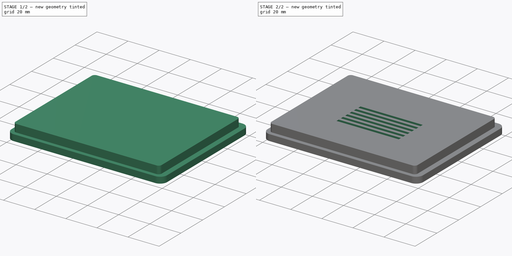
[diagram: build sequence overview — one tinted view per stage of 2, left to right]
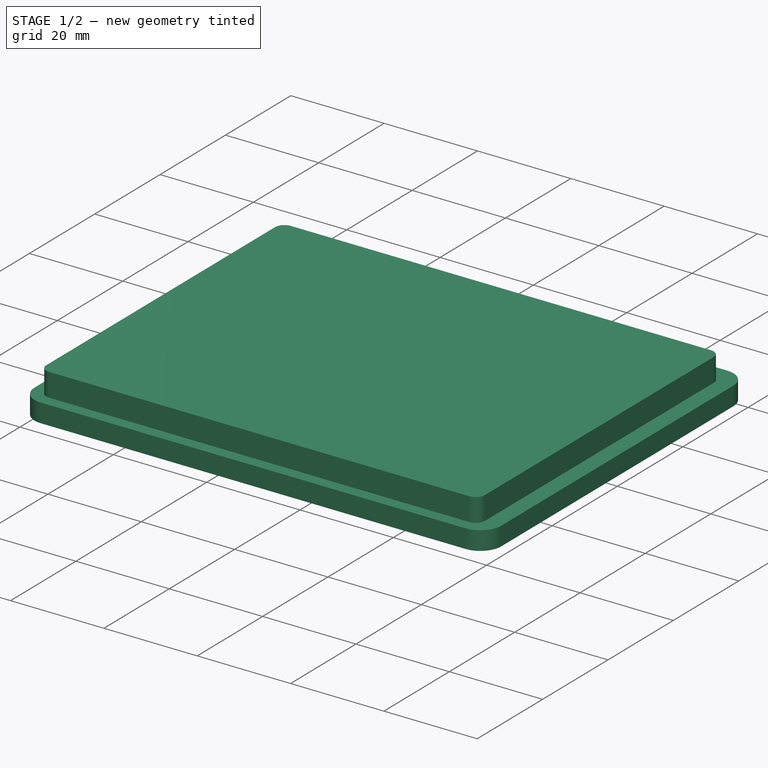
[diagram: stage 1 of 2 — iso view after this stage's code; geometry added in this stage tinted green]
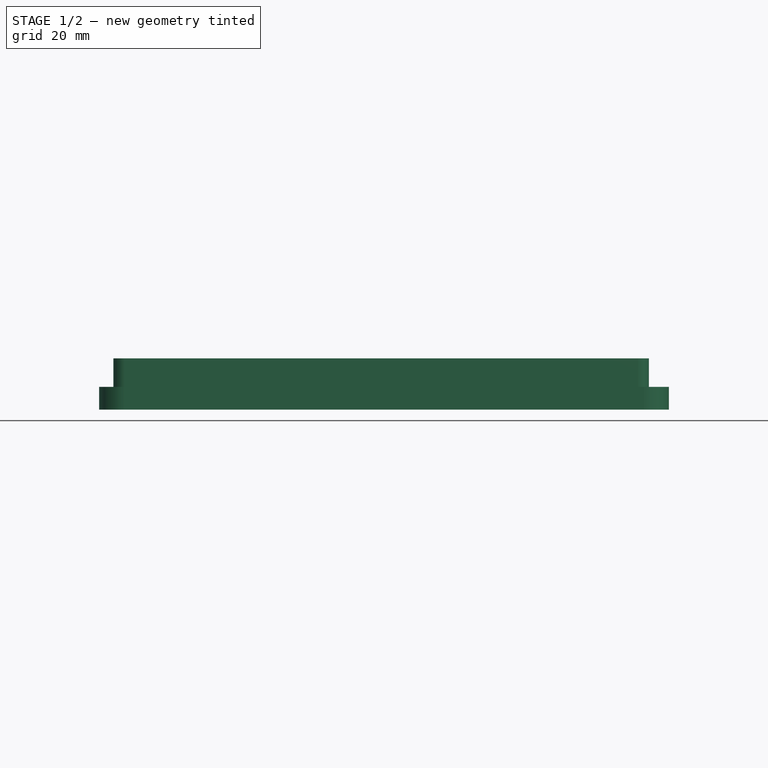
[diagram: stage 1 of 2 — front view after this stage's code; geometry added in this stage tinted green]
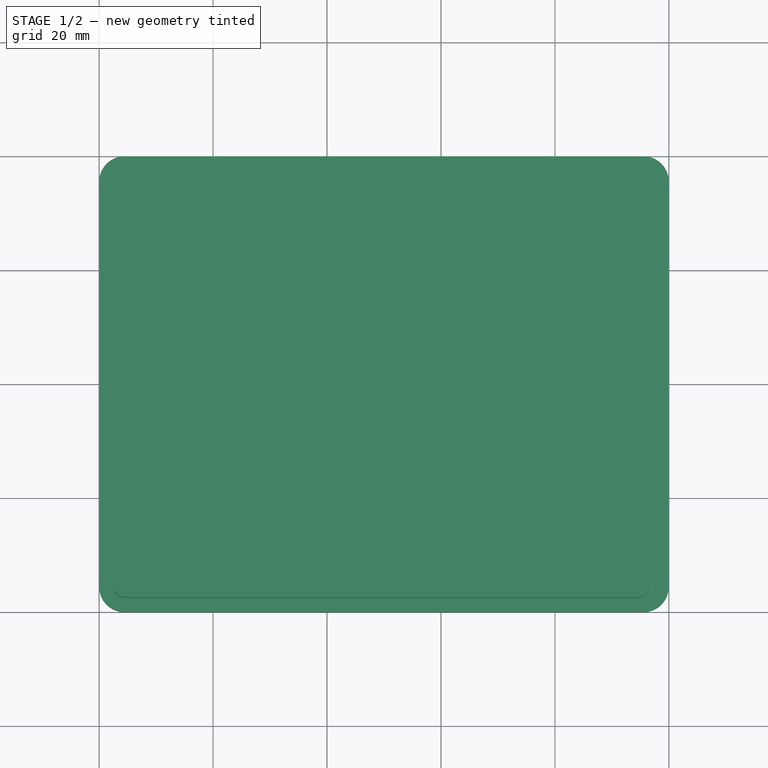
[diagram: stage 1 of 2 — top view after this stage's code; geometry added in this stage tinted green]
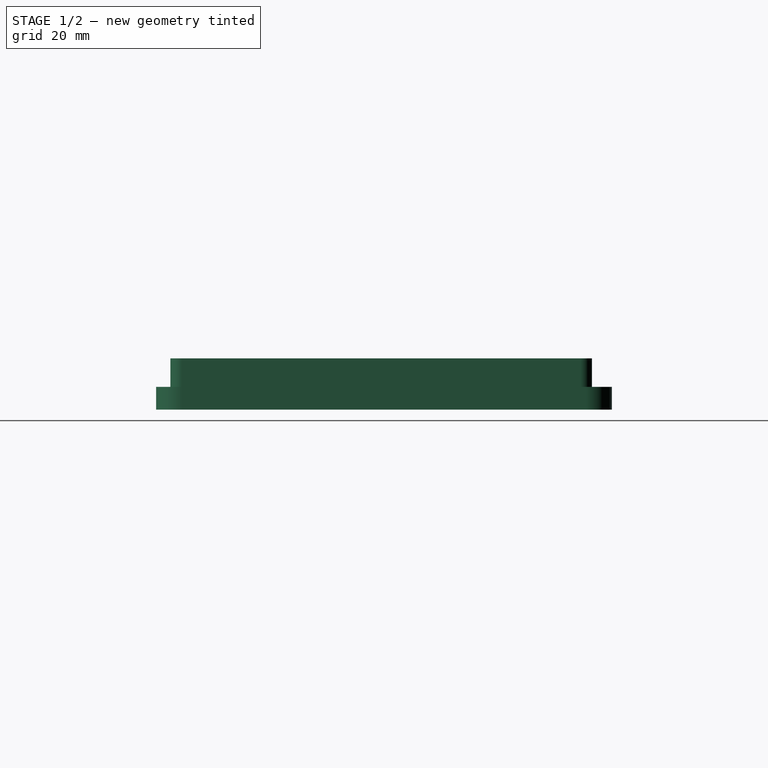
[diagram: stage 1 of 2 — right view after this stage's code; geometry added in this stage tinted green]
FCSTD DOCUMENT  (FreeCAD 1.0R39109 (Git))
Label: boxx
License: All rights reserved
LicenseURL: http://en.wikipedia.org/wiki/All_rights_reserved
objects: Sketcher::SketchObject×3, PartDesign::Pad×2, PartDesign::Pocket×1, PartDesign::Body×1
note: 16 computed .brp shape members not serialized (recipe doc carries the construction recipe); baked Part::Feature solids carry a one-line shape summary decoded from their .brp

FEATURE [Sketcher::SketchObject] Sketch
  ArcFitTolerance = 1e-06
  AttachmentSupport = -> [XY_Plane]
  FullyConstrained = true
  MakeInternals = false
  MapMode = 5
  sketch-geometry (12):
    g0: LineSegment StartX=4.5 StartY=0 StartZ=0 EndX=95.5 EndY=0 EndZ=0
    g1: LineSegment StartX=100 StartY=4.5 StartZ=0 EndX=100 EndY=75.5 EndZ=0
    g2: LineSegment StartX=95.5 StartY=80 StartZ=0 EndX=4.5 EndY=80 EndZ=0
    g3: LineSegment StartX=0 StartY=75.5 StartZ=0 EndX=0 EndY=4.5 EndZ=0
    g4: ArcOfCircle CenterX=4.5 CenterY=75.5 CenterZ=0 NormalX=0 NormalY=0 NormalZ=1 AngleXU=0 Radius=4.5 StartAngle=1.5708 EndAngle=3.14159
    g5: GeomPoint [constr] X=0 Y=80 Z=0
    g6: ArcOfCircle CenterX=95.5 CenterY=75.5 CenterZ=0 NormalX=0 NormalY=0 NormalZ=1 AngleXU=0 Radius=4.5 StartAngle=1.1e-15 EndAngle=1.5708
    g7: GeomPoint [constr] X=100 Y=80 Z=0
    g8: ArcOfCircle CenterX=95.5 CenterY=4.5 CenterZ=0 NormalX=0 NormalY=0 NormalZ=1 AngleXU=0 Radius=4.5 StartAngle=4.71239 EndAngle=6.28319
    g9: GeomPoint [constr] X=100 Y=0 Z=0
    g10: ArcOfCircle CenterX=4.5 CenterY=4.5 CenterZ=0 NormalX=0 NormalY=0 NormalZ=1 AngleXU=0 Radius=4.5 StartAngle=3.14159 EndAngle=4.71239
    g11: GeomPoint [constr] X=0 Y=0 Z=0
  constraints (27):
    c: Horizontal(g0)
    c: Horizontal(g2)
    c: Vertical(g1)
    c: Vertical(g3)
    c: Distance(g9,g11) = 100
    c: Distance(g11,g5) = 80
    c: Coincident(g11,g-1)
    c: PointOnObject(g5,g2)
    c: PointOnObject(g5,g3)
    c: Tangent(g2,g4) = -1.5708
    c: Tangent(g3,g4) = -1.5708
    c: PointOnObject(g7,g2)
    c: PointOnObject(g7,g1)
    c: Tangent(g2,g6) = -1.5708
    c: Tangent(g1,g6) = -1.5708
    c: PointOnObject(g9,g1)
    c: PointOnObject(g9,g0)
    c: Tangent(g1,g8) = -1.5708
    c: Tangent(g0,g8) = -1.5708
    c: PointOnObject(g11,g0)
    c: PointOnObject(g11,g3)
    c: Tangent(g0,g10) = -1.5708
    c: Tangent(g3,g10) = -1.5708
    c: DistanceX(g6,g7) = 4.5
    c: DistanceX(g8,g9) = 4.5
    c: DistanceX(g11,g10) = 4.5
    c: DistanceX(g5,g4) = 4.5
FEATURE [PartDesign::Pad] Pad
  Direction = (0,0,1)
  Length = 4
  Length2 = 10
  Profile = -> Sketch
  ReferenceAxis = -> Sketch [N_Axis]
  Suppressed = false
  Type = 0
FEATURE [Sketcher::SketchObject] Sketch001
  ArcFitTolerance = 1e-06
  AttachmentSupport = -> [Pad]
  FullyConstrained = true
  MakeInternals = false
  MapMode = 5
  Placement = pos=(0,0,4) rot=(0,0,1;0rad)
  sketch-geometry (12):
    g0: LineSegment StartX=2.5 StartY=74.5 StartZ=0 EndX=2.5 EndY=4.5 EndZ=0
    g1: LineSegment StartX=4.5 StartY=2.5 StartZ=0 EndX=94.5 EndY=2.5 EndZ=0
    g2: LineSegment StartX=96.5 StartY=4.5 StartZ=0 EndX=96.5 EndY=74.5 EndZ=0
    g3: LineSegment StartX=94.5 StartY=76.5 StartZ=0 EndX=4.5 EndY=76.5 EndZ=0
    g4: ArcOfCircle CenterX=4.5 CenterY=74.5 CenterZ=0 NormalX=0 NormalY=0 NormalZ=1 AngleXU=0 Radius=2 StartAngle=1.5708 EndAngle=3.14159
    g5: GeomPoint [constr] X=2.5 Y=76.5 Z=0
    g6: ArcOfCircle CenterX=94.5 CenterY=74.5 CenterZ=0 NormalX=0 NormalY=0 NormalZ=1 AngleXU=0 Radius=2 StartAngle=2.3e-15 EndAngle=1.5708
    g7: GeomPoint [constr] X=96.5 Y=76.5 Z=0
    g8: ArcOfCircle CenterX=94.5 CenterY=4.5 CenterZ=0 NormalX=0 NormalY=0 NormalZ=1 AngleXU=0 Radius=2 StartAngle=4.71239 EndAngle=6.28319
    g9: GeomPoint [constr] X=96.5 Y=2.5 Z=0
    g10: ArcOfCircle CenterX=4.5 CenterY=4.5 CenterZ=0 NormalX=0 NormalY=0 NormalZ=1 AngleXU=0 Radius=2 StartAngle=3.14159 EndAngle=4.71239
    g11: GeomPoint [constr] X=2.5 Y=2.5 Z=0
  constraints (28):
    c: Vertical(g0)
    c: Vertical(g2)
    c: Horizontal(g1)
    c: Horizontal(g3)
    c: Distance(g5,g7) = 94
    c: Distance(g11,g5) = 74
    c: DistanceX(g-1,g11) = 2.5
    c: DistanceY(g-1,g11) = 2.5
    c: PointOnObject(g5,g0)
    c: PointOnObject(g5,g3)
    c: Tangent(g0,g4) = -1.5708
    c: Tangent(g3,g4) = -1.5708
    c: PointOnObject(g7,g3)
    c: PointOnObject(g7,g2)
    c: Tangent(g3,g6) = -1.5708
    c: Tangent(g2,g6) = -1.5708
    c: PointOnObject(g9,g1)
    c: PointOnObject(g9,g2)
    c: Tangent(g1,g8) = -1.5708
    c: Tangent(g2,g8) = -1.5708
    c: PointOnObject(g11,g0)
    c: PointOnObject(g11,g1)
    c: Tangent(g0,g10) = -1.5708
    c: Tangent(g1,g10) = -1.5708
    c: DistanceX(g5,g4) = 2
    c: DistanceX(g6,g7) = 2
    c: DistanceX(g8,g9) = 2
    c: DistanceX(g11,g10) = 2
FEATURE [PartDesign::Pad] Pad001
  BaseFeature = -> Pad
  Direction = (0,0,1)
  Length = 5
  Length2 = 10
  Profile = -> Sketch001
  ReferenceAxis = -> Sketch001 [N_Axis]
  Suppressed = false
  Type = 0
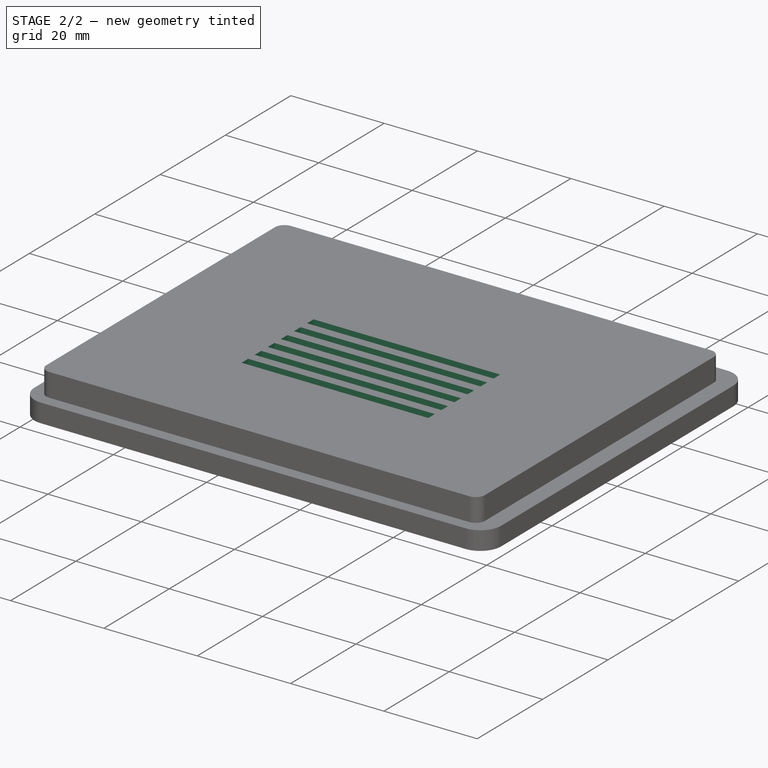
[diagram: stage 2 of 2 — iso view after this stage's code; geometry added in this stage tinted green]
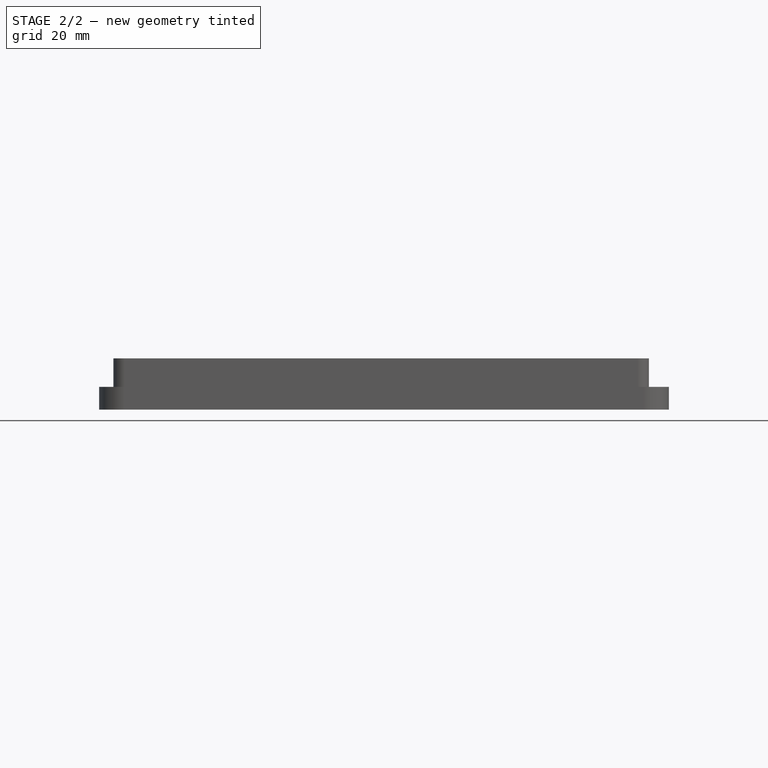
[diagram: stage 2 of 2 — front view after this stage's code; geometry added in this stage tinted green]
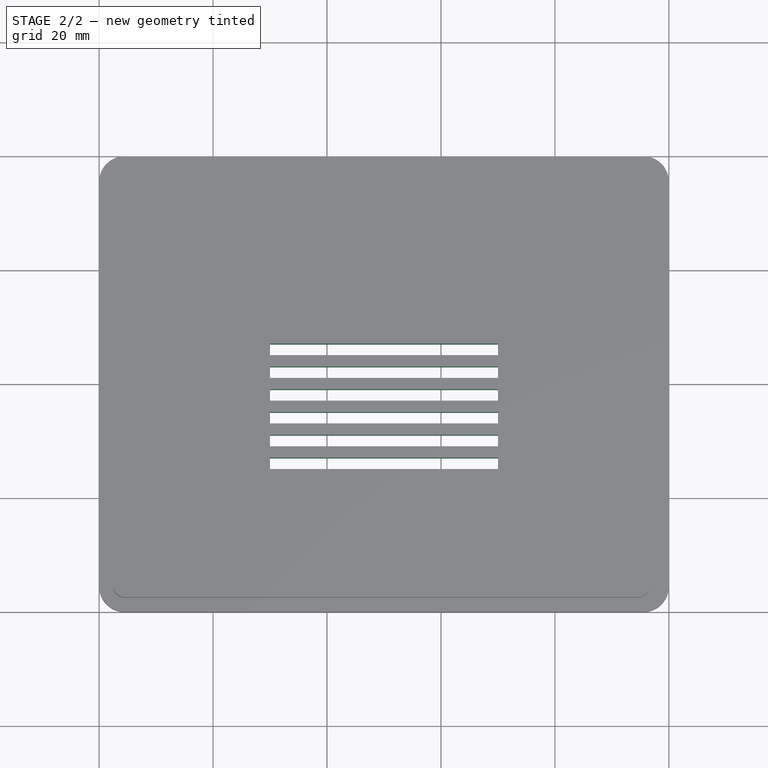
[diagram: stage 2 of 2 — top view after this stage's code; geometry added in this stage tinted green]
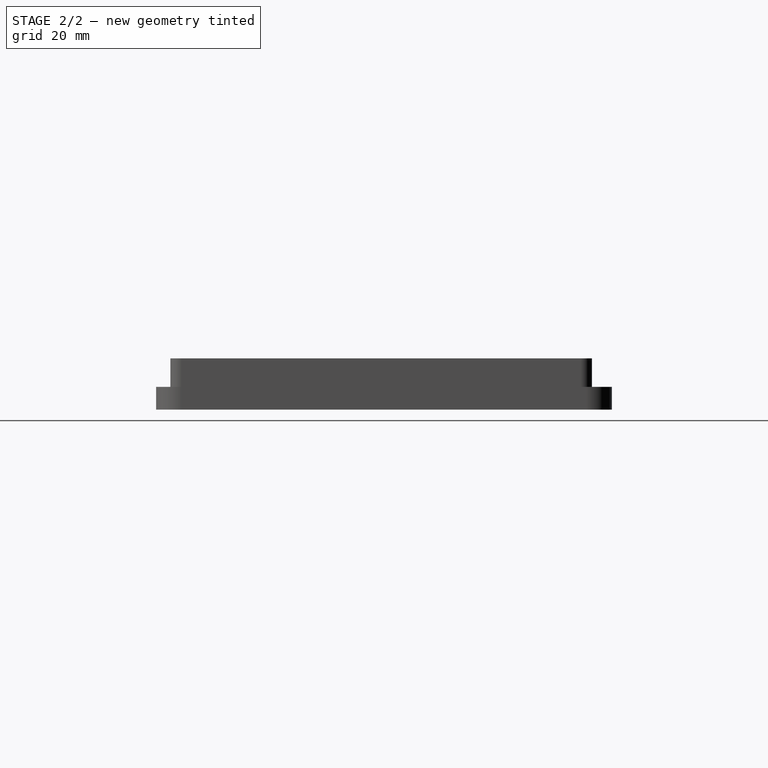
[diagram: stage 2 of 2 — right view after this stage's code; geometry added in this stage tinted green]
FEATURE [Sketcher::SketchObject] Sketch002
  ArcFitTolerance = 1e-06
  AttachmentSupport = -> [Pad001]
  FullyConstrained = true
  MakeInternals = false
  MapMode = 5
  Placement = pos=(0,0,0) rot=(1,0,0;3.14159rad)
  sketch-geometry (24):
    g0: LineSegment StartX=30 StartY=-45 StartZ=0 EndX=30 EndY=-47 EndZ=0
    g1: LineSegment StartX=30 StartY=-47 StartZ=0 EndX=70 EndY=-47 EndZ=0
    g2: LineSegment StartX=70 StartY=-47 StartZ=0 EndX=70 EndY=-45 EndZ=0
    g3: LineSegment StartX=70 StartY=-45 StartZ=0 EndX=30 EndY=-45 EndZ=0
    g4: LineSegment StartX=30 StartY=-41 StartZ=0 EndX=30 EndY=-43 EndZ=0
    g5: LineSegment StartX=30 StartY=-43 StartZ=0 EndX=70 EndY=-43 EndZ=0
    g6: LineSegment StartX=70 StartY=-43 StartZ=0 EndX=70 EndY=-41 EndZ=0
    g7: LineSegment StartX=70 StartY=-41 StartZ=0 EndX=30 EndY=-41 EndZ=0
    g8: LineSegment StartX=30 StartY=-37 StartZ=0 EndX=30 EndY=-39 EndZ=0
    g9: LineSegment StartX=30 StartY=-39 StartZ=0 EndX=70 EndY=-39 EndZ=0
    g10: LineSegment StartX=70 StartY=-39 StartZ=0 EndX=70 EndY=-37 EndZ=0
    g11: LineSegment StartX=70 StartY=-37 StartZ=0 EndX=30 EndY=-37 EndZ=0
    g12: LineSegment StartX=30 StartY=-33 StartZ=0 EndX=30 EndY=-35 EndZ=0
    g13: LineSegment StartX=30 StartY=-35 StartZ=0 EndX=70 EndY=-35 EndZ=0
    g14: LineSegment StartX=70 StartY=-35 StartZ=0 EndX=70 EndY=-33 EndZ=0
    g15: LineSegment StartX=70 StartY=-33 StartZ=0 EndX=30 EndY=-33 EndZ=0
    g16: LineSegment StartX=30 StartY=-29 StartZ=0 EndX=30 EndY=-31 EndZ=0
    g17: LineSegment StartX=30 StartY=-31 StartZ=0 EndX=70 EndY=-31 EndZ=0
    g18: LineSegment StartX=70 StartY=-31 StartZ=0 EndX=70 EndY=-29 EndZ=0
    g19: LineSegment StartX=70 StartY=-29 StartZ=0 EndX=30 EndY=-29 EndZ=0
    g20: LineSegment StartX=30 StartY=-25 StartZ=0 EndX=30 EndY=-27 EndZ=0
    g21: LineSegment StartX=30 StartY=-27 StartZ=0 EndX=70 EndY=-27 EndZ=0
    g22: LineSegment StartX=70 StartY=-27 StartZ=0 EndX=70 EndY=-25 EndZ=0
    g23: LineSegment StartX=70 StartY=-25 StartZ=0 EndX=30 EndY=-25 EndZ=0
  constraints (72):
    c: Coincident(g0,g1)
    c: Coincident(g1,g2)
    c: Coincident(g2,g3)
    c: Coincident(g3,g0)
    c: Vertical(g0)
    c: Vertical(g2)
    c: Horizontal(g1)
    c: Horizontal(g3)
    c: Distance(g0,g2) = 40
    c: Distance(g1,g3) = 2
    c: Coincident(g4,g5)
    c: Coincident(g5,g6)
    c: Coincident(g6,g7)
    c: Coincident(g7,g4)
    c: Vertical(g4)
    c: Vertical(g6)
    c: Horizontal(g5)
    c: Horizontal(g7)
    c: Distance(g4,g6) = 40
    c: Distance(g5,g7) = 2
    c: Coincident(g8,g9)
    c: Coincident(g9,g10)
    c: Coincident(g10,g11)
    c: Coincident(g11,g8)
    c: Vertical(g8)
    c: Vertical(g10)
    c: Horizontal(g9)
    c: Horizontal(g11)
    c: Distance(g8,g10) = 40
    c: Distance(g9,g11) = 2
    c: DistanceX(g4,g8) = 0
    c: DistanceX(g4,g0) = 0
    c: DistanceY(g0,g4) = 2
    c: DistanceY(g4,g8) = 2
    c: Coincident(g12,g13)
    c: Coincident(g13,g14)
    c: Coincident(g14,g15)
    c: Coincident(g15,g12)
    c: Vertical(g12)
    c: Vertical(g14)
    c: Horizontal(g13)
    c: Horizontal(g15)
    c: Distance(g12,g14) = 40
    c: Distance(g13,g15) = 2
    c: Coincident(g16,g17)
    c: Coincident(g17,g18)
    c: Coincident(g18,g19)
    c: Coincident(g19,g16)
    c: Vertical(g16)
    c: Vertical(g18)
    c: Horizontal(g17)
    c: Horizontal(g19)
    c: Distance(g16,g18) = 40
    c: Distance(g17,g19) = 2
    c: Coincident(g20,g21)
    c: Coincident(g21,g22)
    c: Coincident(g22,g23)
    c: Coincident(g23,g20)
    c: Vertical(g20)
    c: Vertical(g22)
    c: Horizontal(g21)
    c: Horizontal(g23)
    c: Distance(g20,g22) = 40
    c: Distance(g21,g23) = 2
    c: DistanceX(g16,g20) = 0
    c: DistanceX(g16,g12) = 0
    c: DistanceY(g12,g16) = 2
    c: DistanceY(g16,g20) = 2
    c: DistanceY(g8,g12) = 2
    c: DistanceX(g-1,g20) = 30
    c: DistanceX(g12,g8) = 0
    c: DistanceY(g20,g-1) = 25
FEATURE [PartDesign::Pocket] Pocket
  BaseFeature = -> Pad001
  Direction = (0,0,1)
  Length = 20
  Length2 = 5
  Profile = -> Sketch002
  ReferenceAxis = -> Sketch002 [N_Axis]
  Suppressed = false
  Type = 0
FEATURE [PartDesign::Body] Body
  AllowCompound = false
  Group = -> [Sketch,Pad,Sketch001,Pad001,Sketch002,Pocket]
  Origin = -> Origin
  Tip = -> Pocket
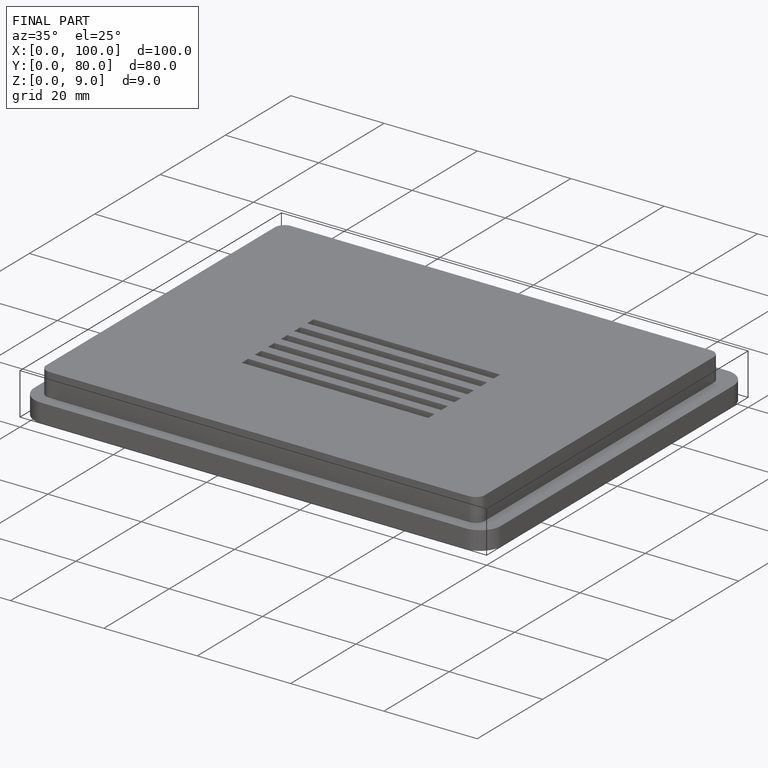
[diagram: finished part — iso view with bounding-box wireframe]
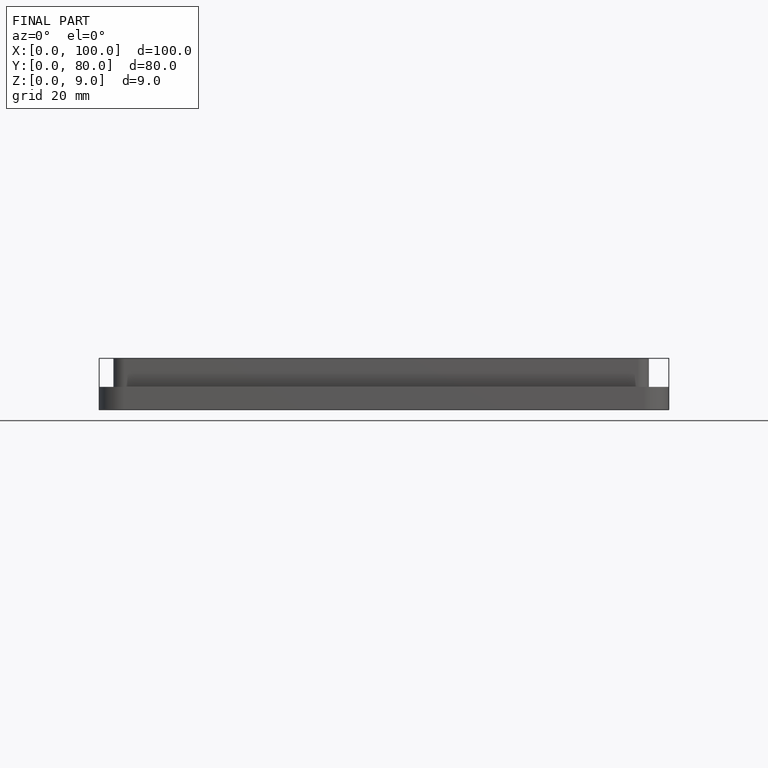
[diagram: finished part — front view with bounding-box wireframe]
